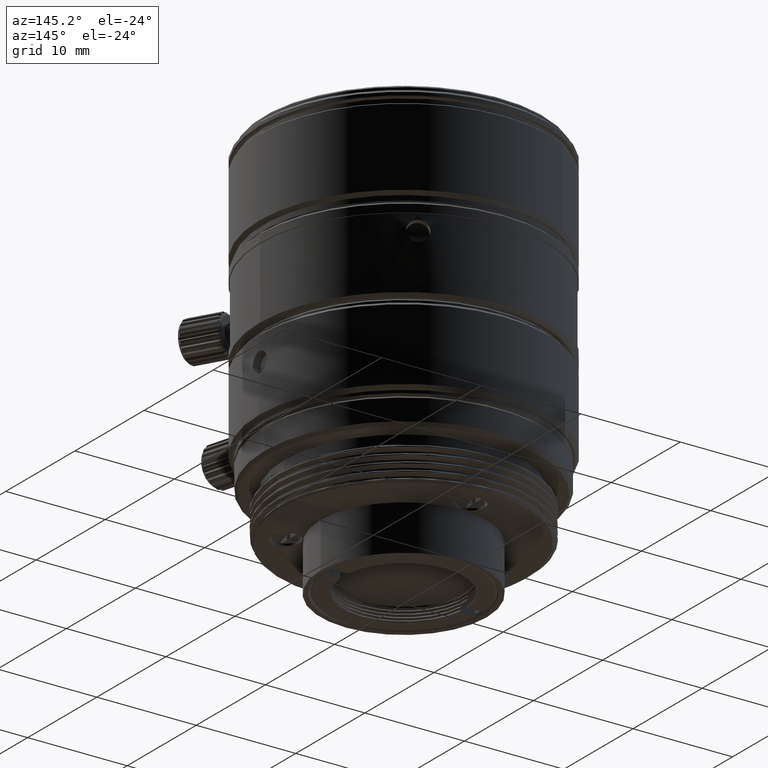
[diagram: clean part render]
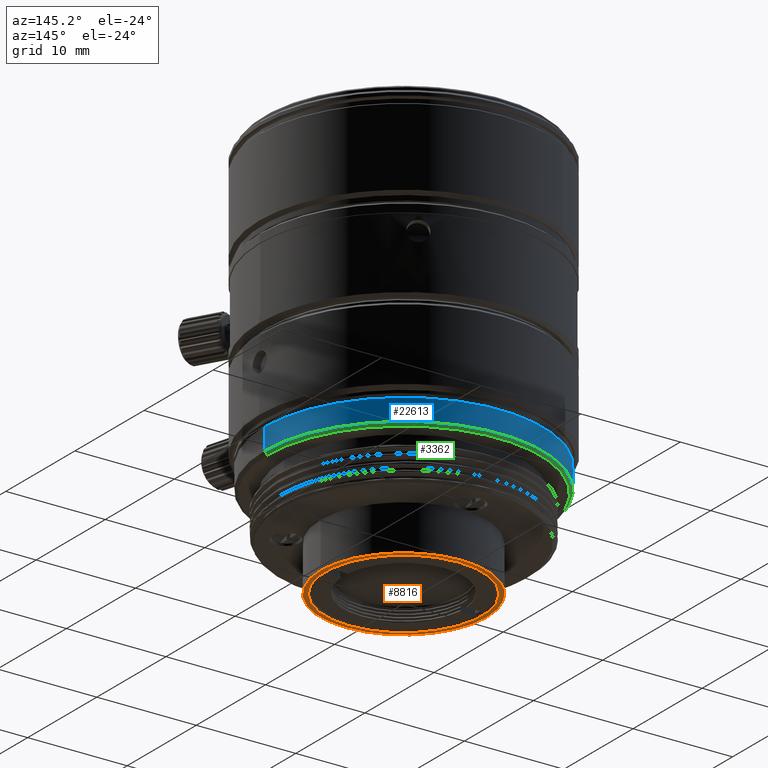
[diagram: same view with three faces highlighted in distinct colors, each labeled with its STEP entity id]
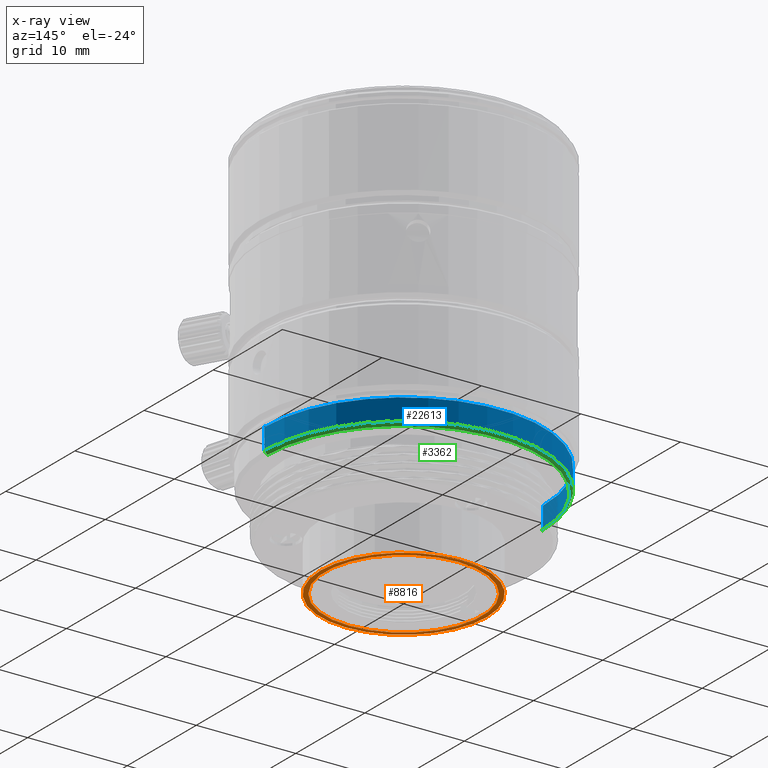
[diagram: x-ray of the same camera — body ghosted, the three highlighted faces saturated]
A machine part, auxiliary view with three faces highlighted in distinct colors.
The next image is the same camera in x-ray (body ghosted, the three faces saturated) — at least one of them is partly hidden behind the body in this view.
Their STEP definitions:

[orange] entity #8816 — the highlighted planar face has unit normal (0, 0, 1).
#2248 = DIRECTION ( 'NONE',  ( 1.000000000000000000, 0.000000000000000000, 0.000000000000000000 ) ) ;
#3790 = CARTESIAN_POINT ( 'NONE',  ( -8.349999677741001491, 1.022580037822694731E-15, -6.062598238604000045 ) ) ;
#6884 = CARTESIAN_POINT ( 'NONE',  ( 0.000000000000000000, 0.000000000000000000, -6.062598238604000045 ) ) ;
#6973 = VERTEX_POINT ( 'NONE', #24174 ) ;
#7266 = DIRECTION ( 'NONE',  ( -1.000000000000000000, 0.000000000000000000, 0.000000000000000000 ) ) ;
#8816 = ADVANCED_FACE ( 'NONE', ( #13003, #24736 ), #25311, .F. ) ;
#10036 = AXIS2_PLACEMENT_3D ( 'NONE', #13654, #37074, #22123 ) ;
#10076 = DIRECTION ( 'NONE',  ( -1.000000000000000000, 0.000000000000000000, 0.000000000000000000 ) ) ;
#10845 = AXIS2_PLACEMENT_3D ( 'NONE', #19168, #16084, #2248 ) ;
#12076 = EDGE_CURVE ( 'NONE', #18328, #6973, #35321, .T. ) ;
#12848 = DIRECTION ( 'NONE',  ( 0.000000000000000000, 0.000000000000000000, 1.000000000000000000 ) ) ;
#12959 = CARTESIAN_POINT ( 'NONE',  ( 0.000000000000000000, 0.000000000000000000, -6.062598238604000045 ) ) ;
#13003 = FACE_OUTER_BOUND ( 'NONE', #26529, .T. ) ;
#13129 = CARTESIAN_POINT ( 'NONE',  ( 9.644093542955688502E-16, -7.874999999730765587, -6.062598238604000045 ) ) ;
#13147 = AXIS2_PLACEMENT_3D ( 'NONE', #6884, #12848, #7266 ) ;
#13654 = CARTESIAN_POINT ( 'NONE',  ( 0.000000000000000000, 0.000000000000000000, -6.062598238604000045 ) ) ;
#15828 = DIRECTION ( 'NONE',  ( 0.000000000000000000, 0.000000000000000000, 1.000000000000000000 ) ) ;
#16084 = DIRECTION ( 'NONE',  ( 0.000000000000000000, 0.000000000000000000, 1.000000000000000000 ) ) ;
#18328 = VERTEX_POINT ( 'NONE', #3790 ) ;
#19168 = CARTESIAN_POINT ( 'NONE',  ( 0.000000000000000000, 7.880007308686000300, -6.062598238604000045 ) ) ;
#19372 = EDGE_CURVE ( 'NONE', #28977, #29256, #25203, .T. ) ;
#21408 = ORIENTED_EDGE ( 'NONE', *, *, #12076, .F. ) ;
#22123 = DIRECTION ( 'NONE',  ( 1.000000000000000000, 0.000000000000000000, 0.000000000000000000 ) ) ;
#23545 = CIRCLE ( 'NONE', #10036, 8.349999677741001491 ) ;
#23708 = AXIS2_PLACEMENT_3D ( 'NONE', #30981, #15828, #33475 ) ;
#24174 = CARTESIAN_POINT ( 'NONE',  ( 8.349999677741001491, 0.000000000000000000, -6.062598238604000045 ) ) ;
#24736 = FACE_BOUND ( 'NONE', #28642, .T. ) ;
#24887 = DIRECTION ( 'NONE',  ( 0.000000000000000000, 0.000000000000000000, 1.000000000000000000 ) ) ;
#25203 = CIRCLE ( 'NONE', #27663, 7.875000000000000000 ) ;
#25311 = PLANE ( 'NONE',  #10845 ) ;
#25823 = ORIENTED_EDGE ( 'NONE', *, *, #27822, .T. ) ;
#26529 = EDGE_LOOP ( 'NONE', ( #29680, #21408 ) ) ;
#27663 = AXIS2_PLACEMENT_3D ( 'NONE', #12959, #24887, #10076 ) ;
#27822 = EDGE_CURVE ( 'NONE', #29256, #28977, #33361, .T. ) ;
#28547 = CARTESIAN_POINT ( 'NONE',  ( 0.000000000000000000, 7.874999999730767364, -6.062598238604000045 ) ) ;
#28642 = EDGE_LOOP ( 'NONE', ( #35345, #25823 ) ) ;
#28977 = VERTEX_POINT ( 'NONE', #28547 ) ;
#29256 = VERTEX_POINT ( 'NONE', #13129 ) ;
#29680 = ORIENTED_EDGE ( 'NONE', *, *, #30170, .F. ) ;
#30170 = EDGE_CURVE ( 'NONE', #6973, #18328, #23545, .T. ) ;
#30981 = CARTESIAN_POINT ( 'NONE',  ( 0.000000000000000000, 0.000000000000000000, -6.062598238604000045 ) ) ;
#33361 = CIRCLE ( 'NONE', #13147, 7.875000000000000000 ) ;
#33475 = DIRECTION ( 'NONE',  ( 1.000000000000000000, 0.000000000000000000, 0.000000000000000000 ) ) ;
#35321 = CIRCLE ( 'NONE', #23708, 8.349999677741001491 ) ;
#35345 = ORIENTED_EDGE ( 'NONE', *, *, #19372, .T. ) ;
#37074 = DIRECTION ( 'NONE',  ( 0.000000000000000000, 0.000000000000000000, 1.000000000000000000 ) ) ;

[blue] entity #22613 — the highlighted cylindrical surface (partial cylindrical patch) has radius 14 mm, axis along (0, 0, 1).
#1835 = EDGE_CURVE ( 'NONE', #34106, #30942, #34365, .T. ) ;
#2062 = AXIS2_PLACEMENT_3D ( 'NONE', #24346, #21459, #36385 ) ;
#3731 = CYLINDRICAL_SURFACE ( 'NONE', #25953, 14.00000727461000061 ) ;
#5452 = DIRECTION ( 'NONE',  ( 0.000000000000000000, 0.000000000000000000, -1.000000000000000000 ) ) ;
#6039 = DIRECTION ( 'NONE',  ( 1.000000000000000000, 0.000000000000000000, 0.000000000000000000 ) ) ;
#7304 = VECTOR ( 'NONE', #31489, 1000.000000000000000 ) ;
#10816 = DIRECTION ( 'NONE',  ( -1.000000000000000000, 0.000000000000000000, 0.000000000000000000 ) ) ;
#13259 = CARTESIAN_POINT ( 'NONE',  ( -14.00000727461000061, 1.714506409689079529E-15, 3.300000012818000261 ) ) ;
#16599 = CARTESIAN_POINT ( 'NONE',  ( 0.000000000000000000, 0.000000000000000000, 5.450000040593999451 ) ) ;
#19795 = CARTESIAN_POINT ( 'NONE',  ( -14.00000727461000061, 1.714506409689079529E-15, -4.559999935076000099 ) ) ;
#21459 = DIRECTION ( 'NONE',  ( 0.000000000000000000, 0.000000000000000000, 1.000000000000000000 ) ) ;
#21683 = CIRCLE ( 'NONE', #2062, 14.00000727461000061 ) ;
#22613 = ADVANCED_FACE ( 'NONE', ( #32728 ), #3731, .T. ) ;
#23274 = CARTESIAN_POINT ( 'NONE',  ( 14.00000727461000061, 0.000000000000000000, -4.559999935076000099 ) ) ;
#23430 = CARTESIAN_POINT ( 'NONE',  ( 14.00000727461000061, 0.000000000000000000, 3.300000012818000261 ) ) ;
#23608 = AXIS2_PLACEMENT_3D ( 'NONE', #16599, #5452, #10816 ) ;
#23878 = ORIENTED_EDGE ( 'NONE', *, *, #28846, .F. ) ;
#23922 = DIRECTION ( 'NONE',  ( 0.000000000000000000, 0.000000000000000000, 1.000000000000000000 ) ) ;
#24346 = CARTESIAN_POINT ( 'NONE',  ( 0.000000000000000000, 0.000000000000000000, 3.300000012818000261 ) ) ;
#25882 = CARTESIAN_POINT ( 'NONE',  ( -14.00000727443151050, 0.000000000000000000, 5.450000040593999451 ) ) ;
#25953 = AXIS2_PLACEMENT_3D ( 'NONE', #32354, #23922, #6039 ) ;
#26029 = EDGE_CURVE ( 'NONE', #34389, #34106, #21683, .T. ) ;
#26100 = ORIENTED_EDGE ( 'NONE', *, *, #29703, .T. ) ;
#26352 = LINE ( 'NONE', #23274, #35203 ) ;
#26726 = DIRECTION ( 'NONE',  ( 0.000000000000000000, 0.000000000000000000, 1.000000000000000000 ) ) ;
#27199 = VERTEX_POINT ( 'NONE', #28350 ) ;
#28350 = CARTESIAN_POINT ( 'NONE',  ( 14.00000727443151227, 1.714506409667220982E-15, 5.450000040593999451 ) ) ;
#28846 = EDGE_CURVE ( 'NONE', #34389, #27199, #26352, .T. ) ;
#29540 = ORIENTED_EDGE ( 'NONE', *, *, #26029, .T. ) ;
#29703 = EDGE_CURVE ( 'NONE', #30942, #27199, #37618, .T. ) ;
#30942 = VERTEX_POINT ( 'NONE', #25882 ) ;
#31489 = DIRECTION ( 'NONE',  ( 0.000000000000000000, 0.000000000000000000, 1.000000000000000000 ) ) ;
#32354 = CARTESIAN_POINT ( 'NONE',  ( 0.000000000000000000, 0.000000000000000000, -4.559999935076000099 ) ) ;
#32404 = ORIENTED_EDGE ( 'NONE', *, *, #1835, .T. ) ;
#32728 = FACE_OUTER_BOUND ( 'NONE', #32948, .T. ) ;
#32948 = EDGE_LOOP ( 'NONE', ( #29540, #32404, #26100, #23878 ) ) ;
#34106 = VERTEX_POINT ( 'NONE', #13259 ) ;
#34365 = LINE ( 'NONE', #19795, #7304 ) ;
#34389 = VERTEX_POINT ( 'NONE', #23430 ) ;
#35203 = VECTOR ( 'NONE', #26726, 1000.000000000000000 ) ;
#36385 = DIRECTION ( 'NONE',  ( -1.000000000000000000, 0.000000000000000000, 0.000000000000000000 ) ) ;
#37618 = CIRCLE ( 'NONE', #23608, 14.00000727461000061 ) ;

[green] entity #3362 — the highlighted conical surface has half-angle 45 deg.
#2062 = AXIS2_PLACEMENT_3D ( 'NONE', #24346, #21459, #36385 ) ;
#3362 = ADVANCED_FACE ( 'NONE', ( #13663 ), #34706, .T. ) ;
#3901 = VERTEX_POINT ( 'NONE', #21909 ) ;
#4653 = EDGE_CURVE ( 'NONE', #36748, #34389, #12393, .T. ) ;
#5085 = EDGE_LOOP ( 'NONE', ( #37202, #16435, #13954, #33159 ) ) ;
#6246 = CARTESIAN_POINT ( 'NONE',  ( 13.85000726673999871, 0.000000000000000000, 3.150000004946998722 ) ) ;
#7581 = DIRECTION ( 'NONE',  ( 1.000000000000000000, 0.000000000000000000, 0.000000000000000000 ) ) ;
#8882 = LINE ( 'NONE', #11594, #11445 ) ;
#10945 = EDGE_CURVE ( 'NONE', #3901, #34106, #8882, .T. ) ;
#11445 = VECTOR ( 'NONE', #34291, 1000.000000000000000 ) ;
#11594 = CARTESIAN_POINT ( 'NONE',  ( -13.85000726673999871, 1.696136706738072371E-15, 3.150000004947001386 ) ) ;
#12393 = LINE ( 'NONE', #6246, #15771 ) ;
#13259 = CARTESIAN_POINT ( 'NONE',  ( -14.00000727461000061, 1.714506409689079529E-15, 3.300000012818000261 ) ) ;
#13543 = DIRECTION ( 'NONE',  ( 0.000000000000000000, 0.000000000000000000, 1.000000000000000000 ) ) ;
#13663 = FACE_OUTER_BOUND ( 'NONE', #5085, .T. ) ;
#13906 = AXIS2_PLACEMENT_3D ( 'NONE', #34280, #13543, #7581 ) ;
#13954 = ORIENTED_EDGE ( 'NONE', *, *, #26029, .F. ) ;
#14537 = CIRCLE ( 'NONE', #13906, 13.70000725887000037 ) ;
#15602 = EDGE_CURVE ( 'NONE', #36748, #3901, #14537, .T. ) ;
#15771 = VECTOR ( 'NONE', #32750, 1000.000000000000000 ) ;
#15992 = DIRECTION ( 'NONE',  ( 1.000000000000000000, 0.000000000000000000, -9.393804508009066729E-17 ) ) ;
#16435 = ORIENTED_EDGE ( 'NONE', *, *, #10945, .T. ) ;
#21459 = DIRECTION ( 'NONE',  ( 0.000000000000000000, 0.000000000000000000, 1.000000000000000000 ) ) ;
#21683 = CIRCLE ( 'NONE', #2062, 14.00000727461000061 ) ;
#21909 = CARTESIAN_POINT ( 'NONE',  ( -13.70000725887000037, 1.696136706721467836E-15, 2.999999997075999847 ) ) ;
#22424 = AXIS2_PLACEMENT_3D ( 'NONE', #28097, #36709, #15992 ) ;
#23430 = CARTESIAN_POINT ( 'NONE',  ( 14.00000727461000061, 0.000000000000000000, 3.300000012818000261 ) ) ;
#24346 = CARTESIAN_POINT ( 'NONE',  ( 0.000000000000000000, 0.000000000000000000, 3.300000012818000261 ) ) ;
#26029 = EDGE_CURVE ( 'NONE', #34389, #34106, #21683, .T. ) ;
#28097 = CARTESIAN_POINT ( 'NONE',  ( 0.000000000000000000, 0.000000000000000000, 3.150000004947000054 ) ) ;
#31150 = CARTESIAN_POINT ( 'NONE',  ( 13.70000725887000037, 0.000000000000000000, 2.999999997075999847 ) ) ;
#32750 = DIRECTION ( 'NONE',  ( 0.7071067805519561933, 0.000000000000000000, 0.7071067818211389522 ) ) ;
#33159 = ORIENTED_EDGE ( 'NONE', *, *, #4653, .F. ) ;
#34106 = VERTEX_POINT ( 'NONE', #13259 ) ;
#34280 = CARTESIAN_POINT ( 'NONE',  ( 0.000000000000000000, 0.000000000000000000, 2.999999997075999847 ) ) ;
#34291 = DIRECTION ( 'NONE',  ( -0.7071067805519559712, 8.659560554583428975E-17, 0.7071067818211391742 ) ) ;
#34389 = VERTEX_POINT ( 'NONE', #23430 ) ;
#34706 = CONICAL_SURFACE ( 'NONE', #22424, 13.85000726673999871, 0.7853981625000003852 ) ;
#36385 = DIRECTION ( 'NONE',  ( -1.000000000000000000, 0.000000000000000000, 0.000000000000000000 ) ) ;
#36709 = DIRECTION ( 'NONE',  ( 8.127372344854099080E-17, 0.000000000000000000, 1.000000000000000000 ) ) ;
#36748 = VERTEX_POINT ( 'NONE', #31150 ) ;
#37202 = ORIENTED_EDGE ( 'NONE', *, *, #15602, .T. ) ;